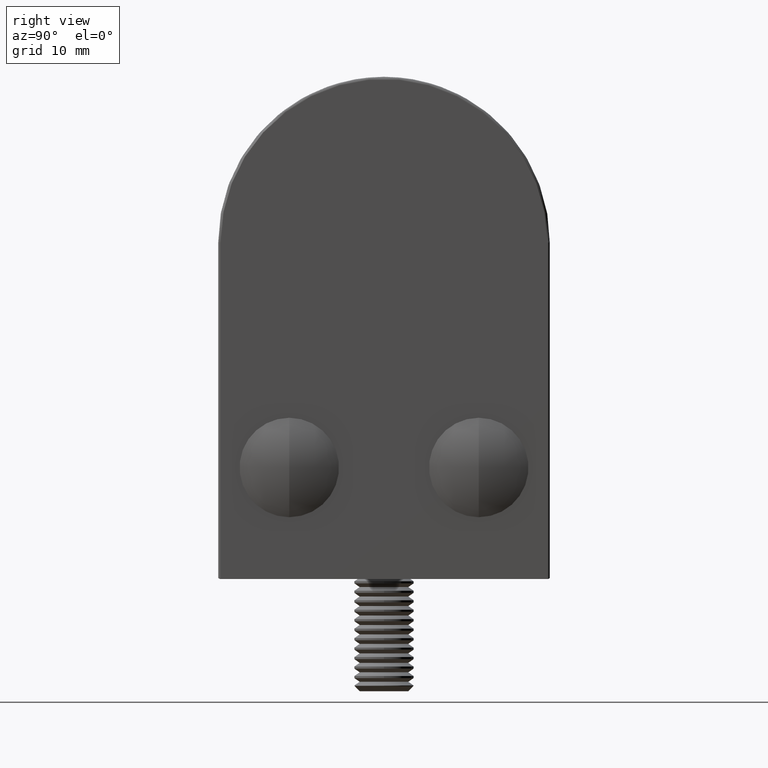
[diagram: clean part render]
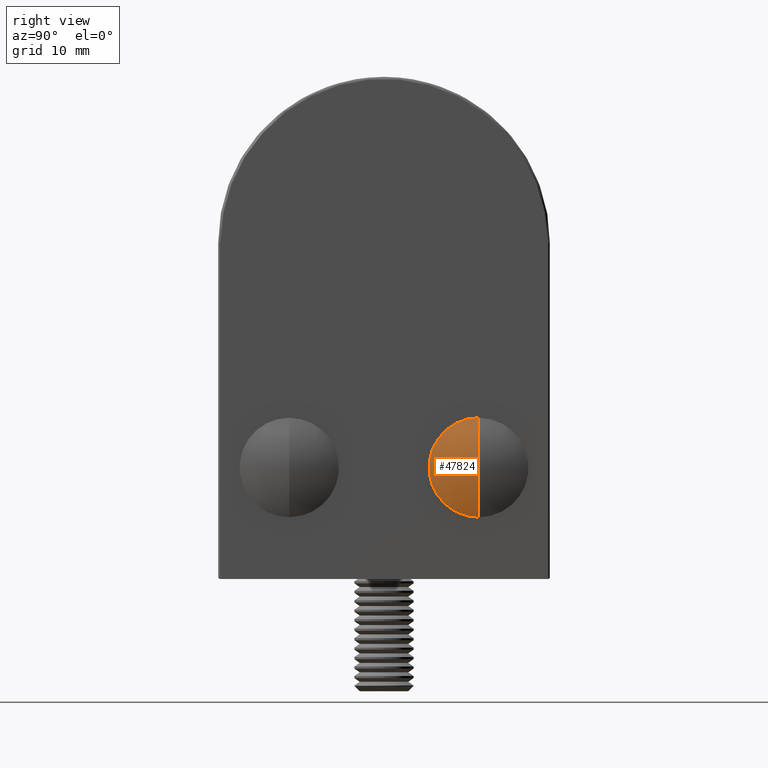
[diagram: same view with one face highlighted and labeled with its STEP entity id]
A machine part, right view. The second image highlights one B-rep face of the part: STEP entity #47824.
In plain terms, the highlighted spherical surface has radius 9.32 mm.
Its self-contained STEP definition (entity closure, byte-faithful):
#6167 = DIRECTION ( 'NONE',  ( 1.000000000000000000, 0.0000000000000000000, 0.0000000000000000000 ) ) ;
#6622 = DIRECTION ( 'NONE',  ( 1.224646799147353200E-016, -0.0000000000000000000, 1.000000000000000000 ) ) ;
#7402 = AXIS2_PLACEMENT_3D ( 'NONE', #11106, #48465, #6167 ) ;
#10410 = CARTESIAN_POINT ( 'NONE',  ( -4.200000000000000200, 8.673617379884035500E-016, 5.143516556418884900E-016 ) ) ;
#10854 = ORIENTED_EDGE ( 'NONE', *, *, #22306, .T. ) ;
#11106 = CARTESIAN_POINT ( 'NONE',  ( 0.0000000000000000000, -8.319999999999993200, 0.0000000000000000000 ) ) ;
#12189 = CARTESIAN_POINT ( 'NONE',  ( 0.0000000000000000000, -8.319999999999993200, 0.0000000000000000000 ) ) ;
#12595 = EDGE_CURVE ( 'NONE', #32828, #34688, #27085, .T. ) ;
#21019 = CIRCLE ( 'NONE', #26007, 9.319999999999995000 ) ;
#21685 = DIRECTION ( 'NONE',  ( 0.0000000000000000000, 0.0000000000000000000, -1.000000000000000000 ) ) ;
#22080 = CARTESIAN_POINT ( 'NONE',  ( 0.0000000000000000000, 0.0000000000000000000, 0.0000000000000000000 ) ) ;
#22306 = EDGE_CURVE ( 'NONE', #27723, #34688, #29894, .T. ) ;
#24321 = CARTESIAN_POINT ( 'NONE',  ( 4.200000000000000200, 8.673617379884035500E-016, 0.0000000000000000000 ) ) ;
#26007 = AXIS2_PLACEMENT_3D ( 'NONE', #12189, #21685, #35666 ) ;
#26247 = DIRECTION ( 'NONE',  ( 0.0000000000000000000, 0.0000000000000000000, -1.000000000000000000 ) ) ;
#27085 = CIRCLE ( 'NONE', #30719, 4.200000000000001100 ) ;
#27723 = VERTEX_POINT ( 'NONE', #30913 ) ;
#29894 = CIRCLE ( 'NONE', #61149, 9.319999999999995000 ) ;
#30719 = AXIS2_PLACEMENT_3D ( 'NONE', #22080, #45402, #26247 ) ;
#30913 = CARTESIAN_POINT ( 'NONE',  ( 5.706854084026663700E-016, 1.000000000000000900, 0.0000000000000000000 ) ) ;
#32828 = VERTEX_POINT ( 'NONE', #24321 ) ;
#33907 = EDGE_CURVE ( 'NONE', #27723, #32828, #21019, .T. ) ;
#34688 = VERTEX_POINT ( 'NONE', #10410 ) ;
#35238 = FACE_OUTER_BOUND ( 'NONE', #58975, .T. ) ;
#35425 = DIRECTION ( 'NONE',  ( 1.000000000000000000, 0.0000000000000000000, -1.224646799147353500E-016 ) ) ;
#35666 = DIRECTION ( 'NONE',  ( -1.000000000000000000, 0.0000000000000000000, 0.0000000000000000000 ) ) ;
#44578 = ORIENTED_EDGE ( 'NONE', *, *, #12595, .F. ) ;
#45402 = DIRECTION ( 'NONE',  ( -0.0000000000000000000, -1.000000000000000000, -0.0000000000000000000 ) ) ;
#47824 = ADVANCED_FACE ( 'NONE', ( #35238 ), #55250, .T. ) ;
#48465 = DIRECTION ( 'NONE',  ( 0.0000000000000000000, 0.0000000000000000000, 1.000000000000000000 ) ) ;
#48879 = ORIENTED_EDGE ( 'NONE', *, *, #33907, .F. ) ;
#53842 = CARTESIAN_POINT ( 'NONE',  ( 0.0000000000000000000, -8.319999999999993200, 0.0000000000000000000 ) ) ;
#55250 = SPHERICAL_SURFACE ( 'NONE', #7402, 9.319999999999995000 ) ;
#58975 = EDGE_LOOP ( 'NONE', ( #48879, #10854, #44578 ) ) ;
#61149 = AXIS2_PLACEMENT_3D ( 'NONE', #53842, #6622, #35425 ) ;